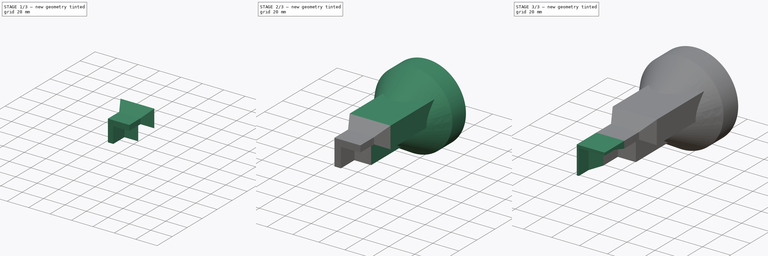
[diagram: build sequence overview — one tinted view per stage of 3, left to right]
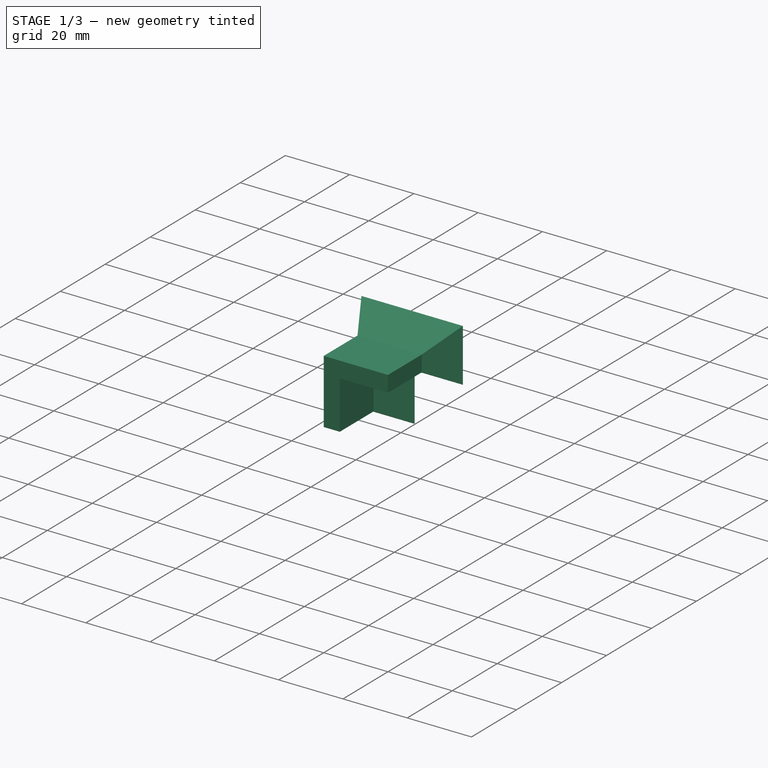
[diagram: stage 1 of 3 — iso view after this stage's code; geometry added in this stage tinted green]
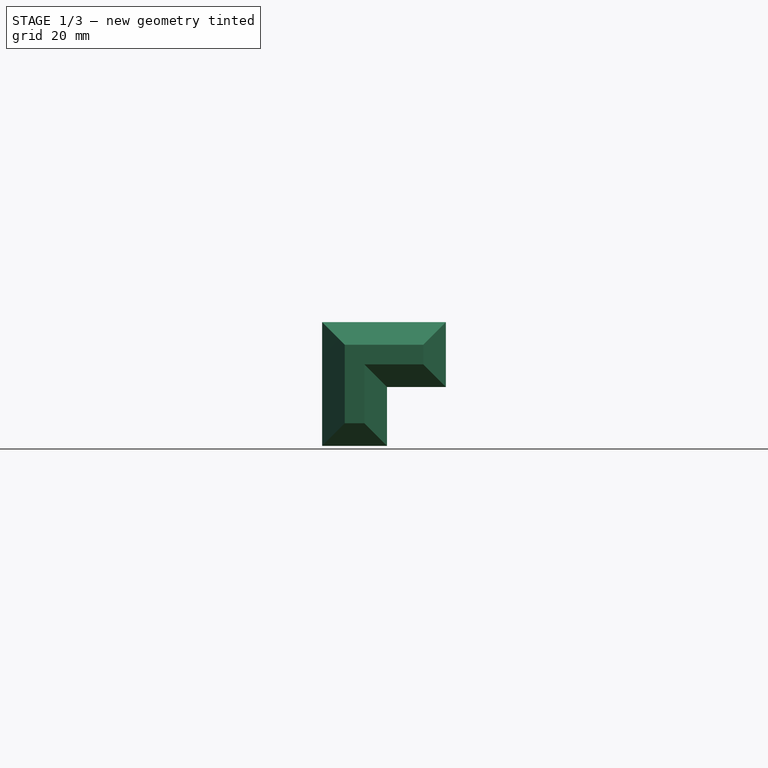
[diagram: stage 1 of 3 — front view after this stage's code; geometry added in this stage tinted green]
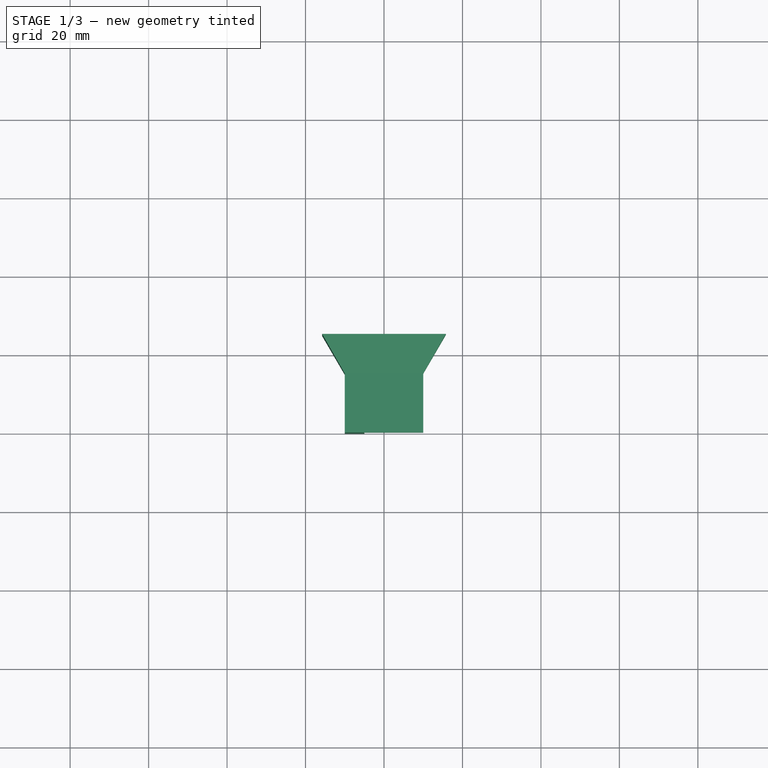
[diagram: stage 1 of 3 — top view after this stage's code; geometry added in this stage tinted green]
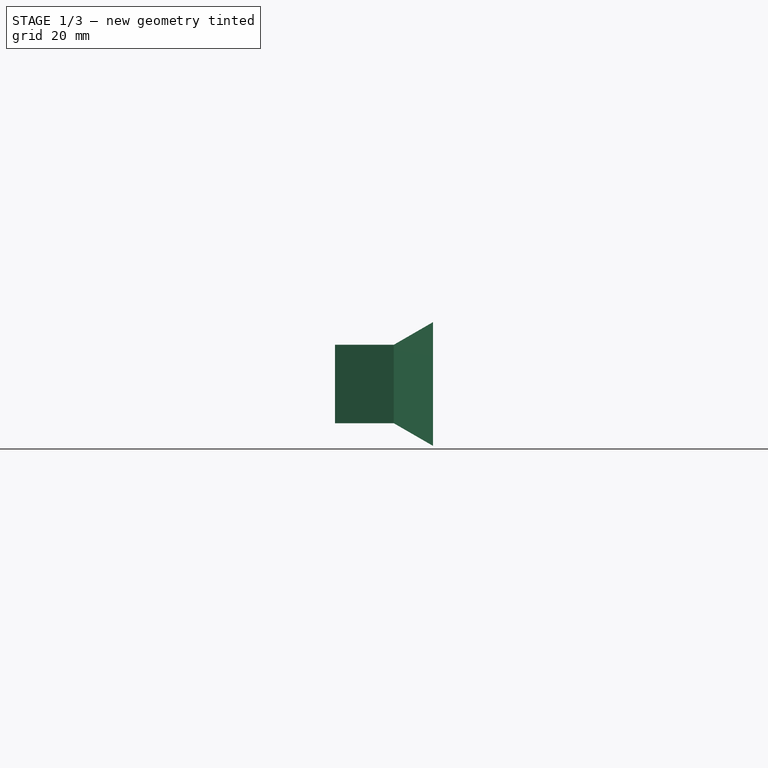
[diagram: stage 1 of 3 — right view after this stage's code; geometry added in this stage tinted green]
FCSTD DOCUMENT  (FreeCAD 0.21R33771 (Git))
Label: TProfileST3
License: All rights reserved
LicenseURL: http://en.wikipedia.org/wiki/All_rights_reserved
objects: Sketcher::SketchObject×5, PartDesign::Pad×5, PartDesign::SubShapeBinder×5, PartDesign::AdditiveCone×1, PartDesign::Plane×1, PartDesign::AdditiveLoft×1, PartDesign::Body×1
note: 26 computed .brp shape members not serialized (recipe doc carries the construction recipe); baked Part::Feature solids carry a one-line shape summary decoded from their .brp

FEATURE [Sketcher::SketchObject] Sketch
  FullyConstrained = true
  MapMode = 5
  Placement = pos=(0,0,0) rot=(1,0,0;1.5708rad)
  Support = -> [XZ_Plane]
  sketch-geometry (6):
    g0: LineSegment StartX=-10 StartY=10 StartZ=0 EndX=10 EndY=10 EndZ=0
    g1: LineSegment StartX=10 StartY=10 StartZ=0 EndX=10 EndY=5 EndZ=0
    g2: LineSegment StartX=10 StartY=5 StartZ=0 EndX=-5 EndY=5 EndZ=0
    g3: LineSegment StartX=-5 StartY=5 StartZ=0 EndX=-5 EndY=-10 EndZ=0
    g4: LineSegment StartX=-5 StartY=-10 StartZ=0 EndX=-10 EndY=-10 EndZ=0
    g5: LineSegment StartX=-10 StartY=-10 StartZ=0 EndX=-10 EndY=10 EndZ=0
  constraints (18):
    c: Horizontal(g0)
    c: Coincident(g0,g1)
    c: Vertical(g1)
    c: Coincident(g1,g2)
    c: Horizontal(g2)
    c: Coincident(g2,g3)
    c: Vertical(g3)
    c: Coincident(g3,g4)
    c: Horizontal(g4)
    c: Coincident(g4,g5)
    c: Coincident(g5,g0)
    c: Vertical(g5)
    c: DistanceY(g1,g1) = 5  'param3'
    c: DistanceX(g4,g4) = 5  'param4'
    c: DistanceX(g0,g0) = 20
    c: DistanceY(g5,g5) = 20
    c: DistanceX(g4,g-1) = 10
    c: DistanceY(g-1,g0) = 10
FEATURE [PartDesign::Pad] Pad
  Direction = (0,-1,-2e-16)
  Length = 15
  Length2 = 10
  Placement = pos=(0,0,0) rot=(1,0,0;1.5708rad)
  Profile = -> Sketch
  ReferenceAxis = -> Sketch [N_Axis]
  Reversed = true
  Type = 0
FEATURE [PartDesign::Pad] Pad001
  BaseFeature = -> Pad
  Direction = (0,1,2e-16)
  Length = 10
  Length2 = 10
  Placement = pos=(0,0,0) rot=(1,0,0;1.5708rad)
  Profile = -> Pad [Face8]
  TaperAngle = 30
  Type = 0
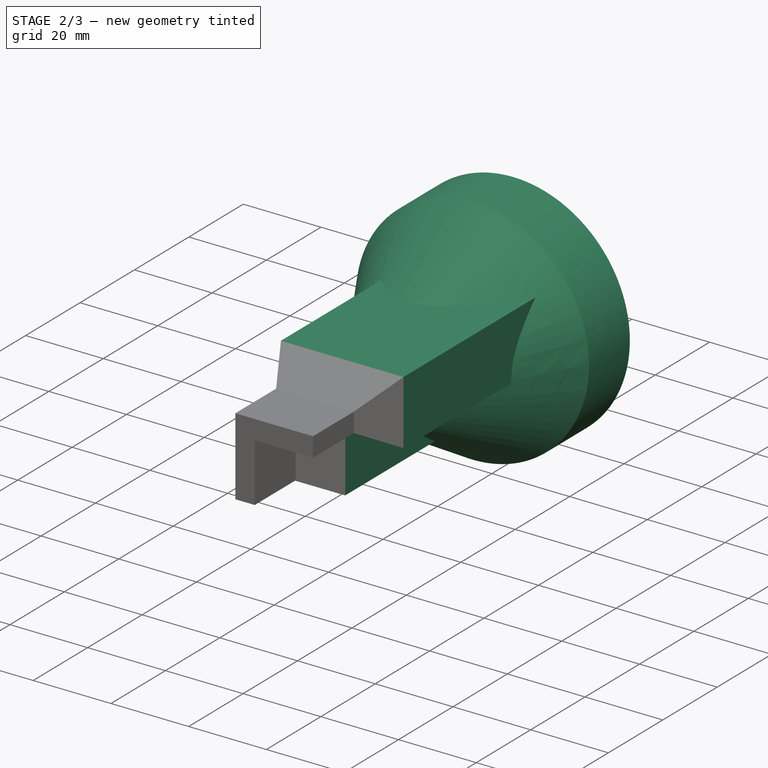
[diagram: stage 2 of 3 — iso view after this stage's code; geometry added in this stage tinted green]
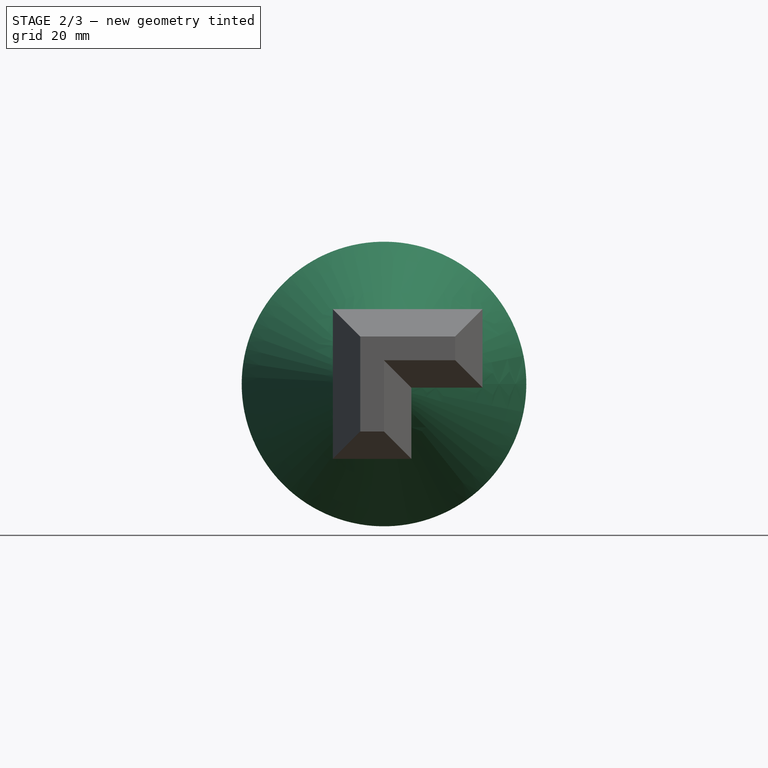
[diagram: stage 2 of 3 — front view after this stage's code; geometry added in this stage tinted green]
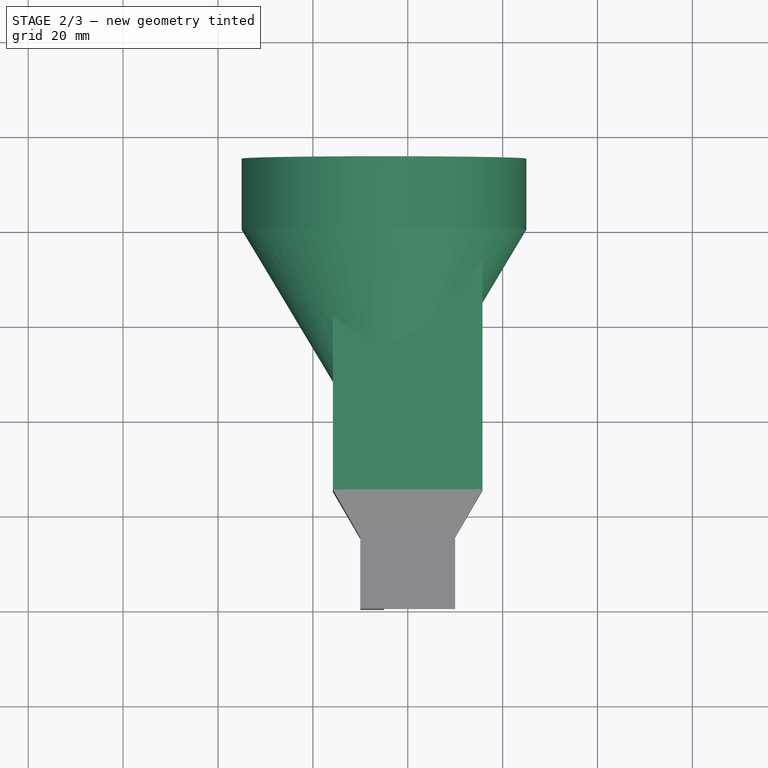
[diagram: stage 2 of 3 — top view after this stage's code; geometry added in this stage tinted green]
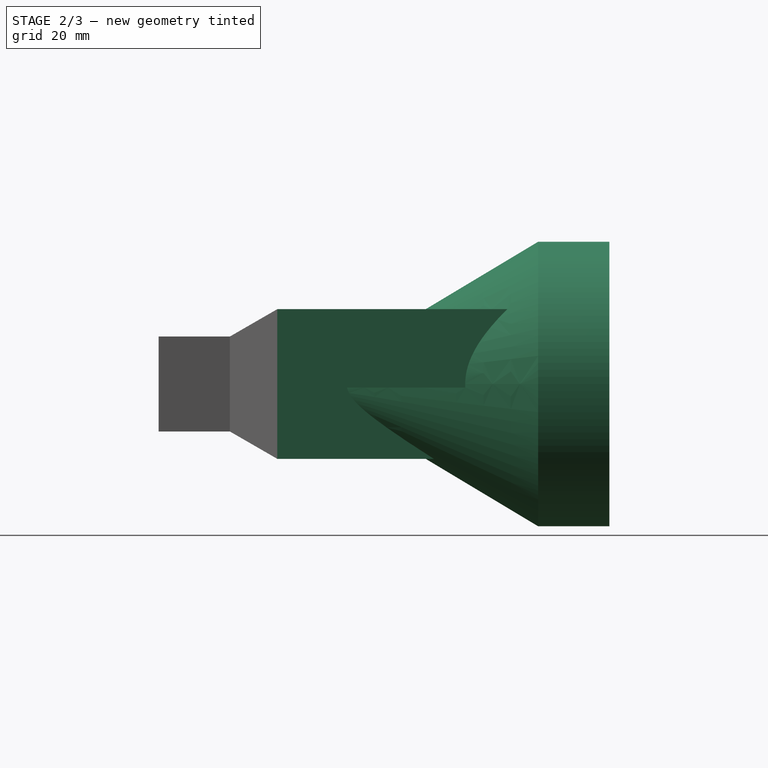
[diagram: stage 2 of 3 — right view after this stage's code; geometry added in this stage tinted green]
FEATURE [PartDesign::Pad] Pad002
  BaseFeature = -> Pad001
  Direction = (0,1,2e-16)
  Length = 50
  Length2 = 10
  Placement = pos=(0,0,0) rot=(1,0,0;1.5708rad)
  Profile = -> Pad001 [Face11]
  Type = 0
FEATURE [PartDesign::AdditiveCone] Cone
  Angle = 360
  AttacherType = Attacher::AttachEngine3D
  AttachmentOffset = pos=(-5,0,-45) rot=(0,0,1;0rad)
  BaseFeature = -> Pad002
  Height = 50
  MapMode = 5
  Placement = pos=(-5,30,6.7e-15) rot=(-1,0,0;1.5708rad)
  Radius1 = 0
  Radius2 = 30
  Support = -> [Pad002]
FEATURE [PartDesign::Pad] Pad003
  BaseFeature = -> Cone
  Direction = (0,1,2e-16)
  Length = 15
  Length2 = 10
  Placement = pos=(-5,30,6.7e-15) rot=(-1,0,0;1.5708rad)
  Profile = -> Cone [Face21]
  Type = 0
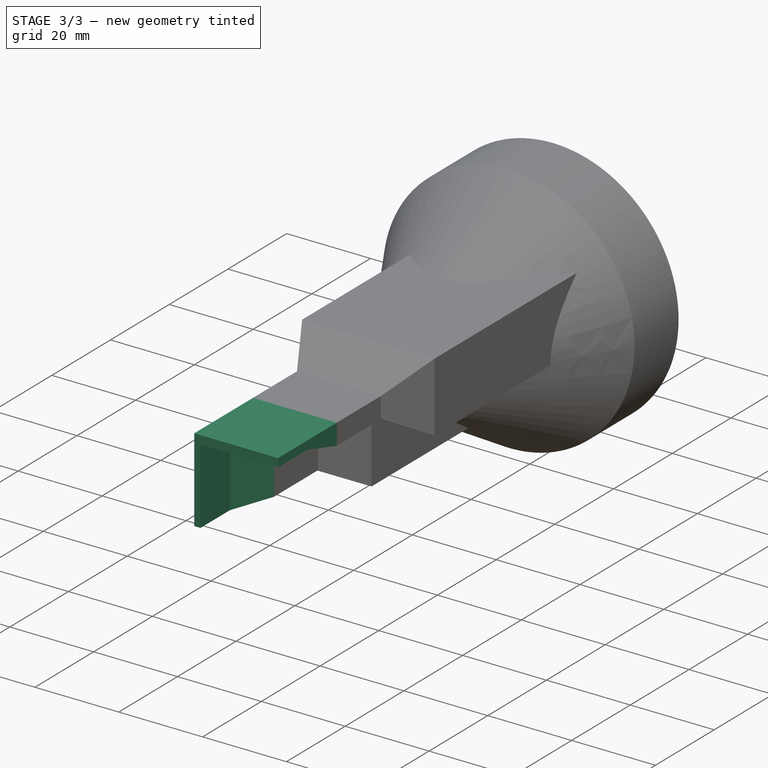
[diagram: stage 3 of 3 — iso view after this stage's code; geometry added in this stage tinted green]
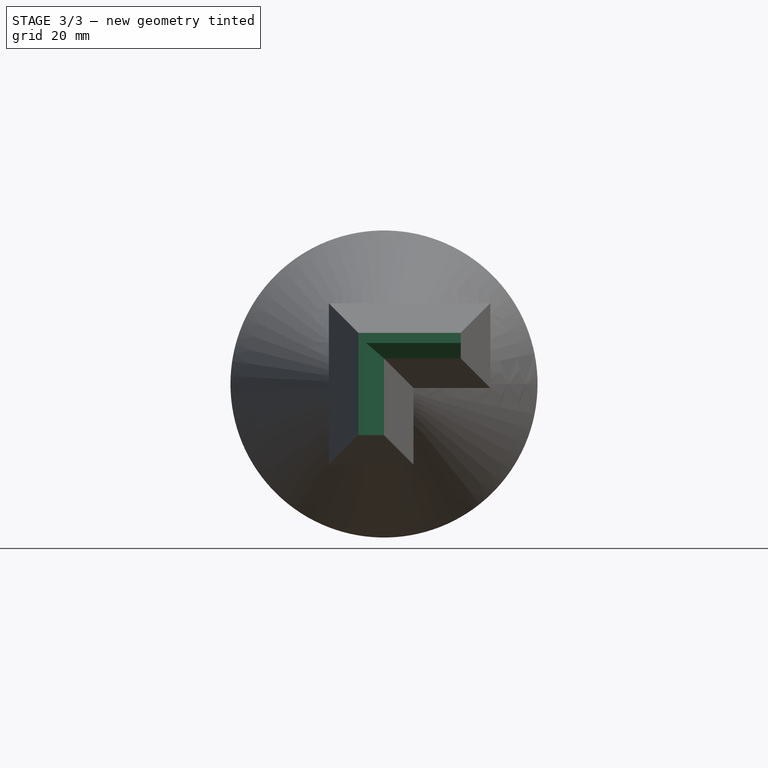
[diagram: stage 3 of 3 — front view after this stage's code; geometry added in this stage tinted green]
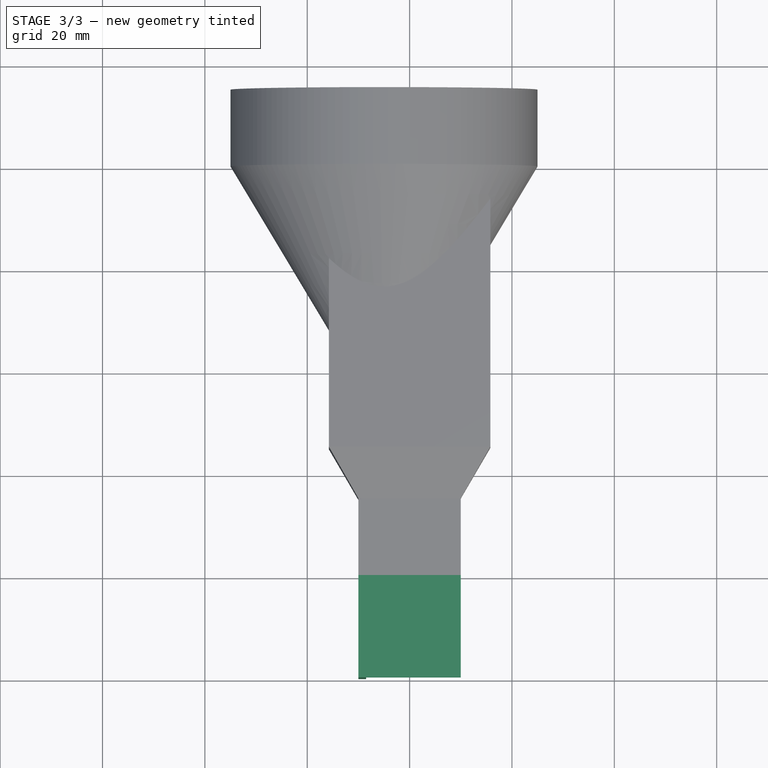
[diagram: stage 3 of 3 — top view after this stage's code; geometry added in this stage tinted green]
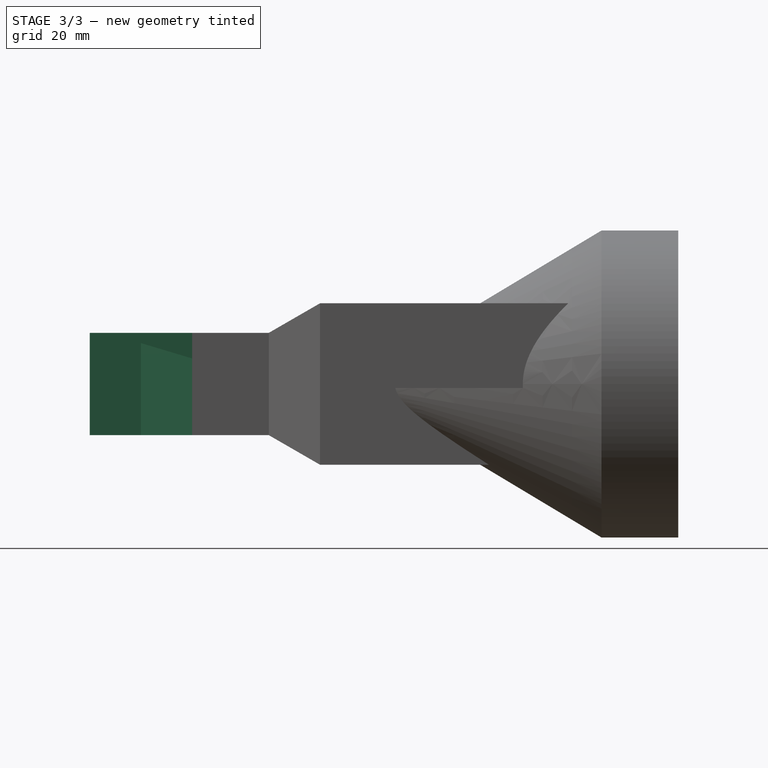
[diagram: stage 3 of 3 — right view after this stage's code; geometry added in this stage tinted green]
FEATURE [PartDesign::Plane] DatumPlane
  AttachmentOffset = pos=(0,0,10) rot=(0,0,1;0rad)
  Length = 60
  MapMode = 5
  Placement = pos=(-5,-10,-1.11e-14) rot=(1,0,0;1.5708rad)
  ResizeMode = 0
  Support = -> [Pad003]
  Width = 60
FEATURE [Sketcher::SketchObject] Sketch001
  FullyConstrained = true
  MapMode = 5
  Placement = pos=(-5,-10,-1.11e-14) rot=(1,0,0;1.5708rad)
  Support = -> [DatumPlane]
  sketch-geometry (6):
    g0: LineSegment StartX=-5 StartY=-10 StartZ=0 EndX=-5 EndY=10 EndZ=0
    g1: LineSegment StartX=-5 StartY=10 StartZ=0 EndX=15 EndY=10 EndZ=0
    g2: LineSegment StartX=15 StartY=10 StartZ=0 EndX=15 EndY=8 EndZ=0
    g3: LineSegment StartX=15 StartY=8 StartZ=0 EndX=-3.5 EndY=8 EndZ=0
    g4: LineSegment StartX=-3.5 StartY=8 StartZ=0 EndX=-3.5 EndY=-10 EndZ=0
    g5: LineSegment StartX=-3.5 StartY=-10 StartZ=0 EndX=-5 EndY=-10 EndZ=0
  constraints (18):
    c: Vertical(g0)
    c: Coincident(g0,g1)
    c: Horizontal(g1)
    c: Coincident(g1,g2)
    c: Vertical(g2)
    c: Coincident(g2,g3)
    c: Horizontal(g3)
    c: Coincident(g3,g4)
    c: Vertical(g4)
    c: Coincident(g4,g5)
    c: Coincident(g5,g0)
    c: Horizontal(g5)
    c: DistanceY(g2,g2) = 2  'param1'
    c: DistanceY(g0,g0) = 20
    c: DistanceY(g-1,g0) = 10
    c: DistanceX(g1,g1) = 20
    c: DistanceX(g5,g5) = 1.5  'param2'
    c: DistanceX(g0,g-1) = 5
FEATURE [PartDesign::AdditiveLoft] AdditiveLoft
  BaseFeature = -> Pad003
  Closed = false
  Placement = pos=(-5,30,6.7e-15) rot=(-1,0,0;1.5708rad)
  Profile = -> Pad003 [Face4]
  Ruled = true
  Sections = -> [Sketch001]
FEATURE [PartDesign::Pad] Pad004
  BaseFeature = -> AdditiveLoft
  Direction = (0,-1,-2e-16)
  Length = 10
  Length2 = 10
  Placement = pos=(-5,30,6.7e-15) rot=(-1,0,0;1.5708rad)
  Profile = -> AdditiveLoft [Face12]
  Type = 0
FEATURE [Sketcher::SketchObject] Sketch002
  FullyConstrained = true
  MapMode = 5
  Placement = pos=(-5,-20,-1e-14) rot=(1,0,0;1.5708rad)
  Support = -> [Pad004]
  expr: Constraints[10] = Sketch001.Constraints.param2
  expr: Constraints[9] = Sketch001.Constraints.param1
  sketch-geometry (4):
    g0: LineSegment StartX=-5 StartY=10 StartZ=0 EndX=-3.5 EndY=10 EndZ=0
    g1: LineSegment StartX=-3.5 StartY=10 StartZ=0 EndX=-3.5 EndY=8 EndZ=0
    g2: LineSegment StartX=-3.5 StartY=8 StartZ=0 EndX=-5 EndY=8 EndZ=0
    g3: LineSegment StartX=-5 StartY=8 StartZ=0 EndX=-5 EndY=10 EndZ=0
  constraints (12):
    c: Coincident(g0,g1)
    c: Coincident(g1,g2)
    c: Coincident(g2,g3)
    c: Coincident(g3,g0)
    c: Horizontal(g0)
    c: Horizontal(g2)
    c: Vertical(g1)
    c: Vertical(g3)
    c: DistanceY(g-1,g0) = 10
    c: DistanceY(g3,g3) = 2
    c: DistanceX(g2,g2) = 1.5
    c: DistanceX(g0,g-1) = 5
FEATURE [Sketcher::SketchObject] Sketch003
  FullyConstrained = true
  MapMode = 5
  Placement = pos=(-5,-20,-1e-14) rot=(1,0,0;1.5708rad)
  Support = -> [Pad004]
  expr: Constraints[10] = Sketch001.Constraints.param1
  sketch-geometry (4):
    g0: LineSegment StartX=-3.5 StartY=10 StartZ=0 EndX=15 EndY=10 EndZ=0
    g1: LineSegment StartX=15 StartY=10 StartZ=0 EndX=15 EndY=8 EndZ=0
    g2: LineSegment StartX=15 StartY=8 StartZ=0 EndX=-3.5 EndY=8 EndZ=0
    g3: LineSegment StartX=-3.5 StartY=8 StartZ=0 EndX=-3.5 EndY=10 EndZ=0
  constraints (12):
    c: Coincident(g0,g1)
    c: Coincident(g1,g2)
    c: Coincident(g2,g3)
    c: Coincident(g3,g0)
    c: Horizontal(g0)
    c: Horizontal(g2)
    c: Vertical(g1)
    c: Vertical(g3)
    c: DistanceX(g-1,g0) = 15
    c: DistanceX(g0,g0) = 18.5
    c: DistanceY(g1,g1) = 2
    c: DistanceY(g-1,g0) = 10
FEATURE [Sketcher::SketchObject] Sketch004
  FullyConstrained = true
  MapMode = 5
  Placement = pos=(-5,-20,-1e-14) rot=(1,0,0;1.5708rad)
  Support = -> [Pad004]
  expr: Constraints[8] = Sketch001.Constraints.param2
  sketch-geometry (4):
    g0: LineSegment StartX=-5 StartY=-10 StartZ=0 EndX=-3.5 EndY=-10 EndZ=0
    g1: LineSegment StartX=-3.5 StartY=-10 StartZ=0 EndX=-3.5 EndY=8 EndZ=0
    g2: LineSegment StartX=-3.5 StartY=8 StartZ=0 EndX=-5 EndY=8 EndZ=0
    g3: LineSegment StartX=-5 StartY=8 StartZ=0 EndX=-5 EndY=-10 EndZ=0
  constraints (12):
    c: Coincident(g0,g1)
    c: Coincident(g1,g2)
    c: Coincident(g2,g3)
    c: Coincident(g3,g0)
    c: Horizontal(g0)
    c: Horizontal(g2)
    c: Vertical(g1)
    c: Vertical(g3)
    c: DistanceX(g0,g0) = 1.5
    c: DistanceX(g0,g-1) = 5
    c: DistanceY(g3,g3) = 18
    c: DistanceY(g0,g-1) = 10
FEATURE [PartDesign::SubShapeBinder] Binder  label="IS1_Body"
  BindCopyOnChange = 0
  BindMode = 0
  ClaimChildren = false
  Context = -> Body [Binder.]
  Fuse = false
  MakeFace = true
  OffsetFill = false
  OffsetIntersection = false
  OffsetJoinType = 0
  OffsetOpenResult = false
  PartialLoad = false
  Relative = true
  Support = -> [Sketch002]
  _Version = 2
FEATURE [PartDesign::SubShapeBinder] Binder001  label="ES1_Body"
  BindCopyOnChange = 0
  BindMode = 0
  ClaimChildren = false
  Context = -> Body [Binder001.]
  Fuse = false
  MakeFace = true
  OffsetFill = false
  OffsetIntersection = false
  OffsetJoinType = 0
  OffsetOpenResult = false
  PartialLoad = false
  Relative = true
  Support = -> [Sketch003]
  _Version = 2
FEATURE [PartDesign::SubShapeBinder] Binder002  label="ES2_Body"
  BindCopyOnChange = 0
  BindMode = 0
  ClaimChildren = false
  Context = -> Body [Binder002.]
  Fuse = false
  MakeFace = true
  OffsetFill = false
  OffsetIntersection = false
  OffsetJoinType = 0
  OffsetOpenResult = false
  PartialLoad = false
  Relative = true
  Support = -> [Sketch004]
  _Version = 2
FEATURE [PartDesign::SubShapeBinder] Binder003  label="inlet_Body"
  BindCopyOnChange = 0
  BindMode = 0
  ClaimChildren = false
  Context = -> Body [Binder003.]
  Fuse = false
  MakeFace = true
  OffsetFill = false
  OffsetIntersection = false
  OffsetJoinType = 0
  OffsetOpenResult = false
  PartialLoad = false
  Relative = true
  Support = -> [Pad004[Face34]]
  _Version = 2
FEATURE [PartDesign::SubShapeBinder] Binder004  label="walls_Body"
  BindCopyOnChange = 0
  BindMode = 0
  ClaimChildren = false
  Context = -> Body [Binder004.]
  Fuse = false
  MakeFace = true
  OffsetFill = false
  OffsetIntersection = false
  OffsetJoinType = 0
  OffsetOpenResult = false
  PartialLoad = false
  Relative = true
  Support = -> [Pad004[Face18,Face24,Face13,Face33,Face8,Face5,Face2,Face1]]
  _Version = 2
FEATURE [PartDesign::Body] Body
  Group = -> [Sketch,Pad,Pad001,Pad002,Cone,Pad003,DatumPlane,Sketch001,AdditiveLoft,Pad004,Sketch002,Sketch003,Sketch004,Binder,Binder001,Binder002,Binder003,Binder004]
  Origin = -> Origin
  Tip = -> Pad004
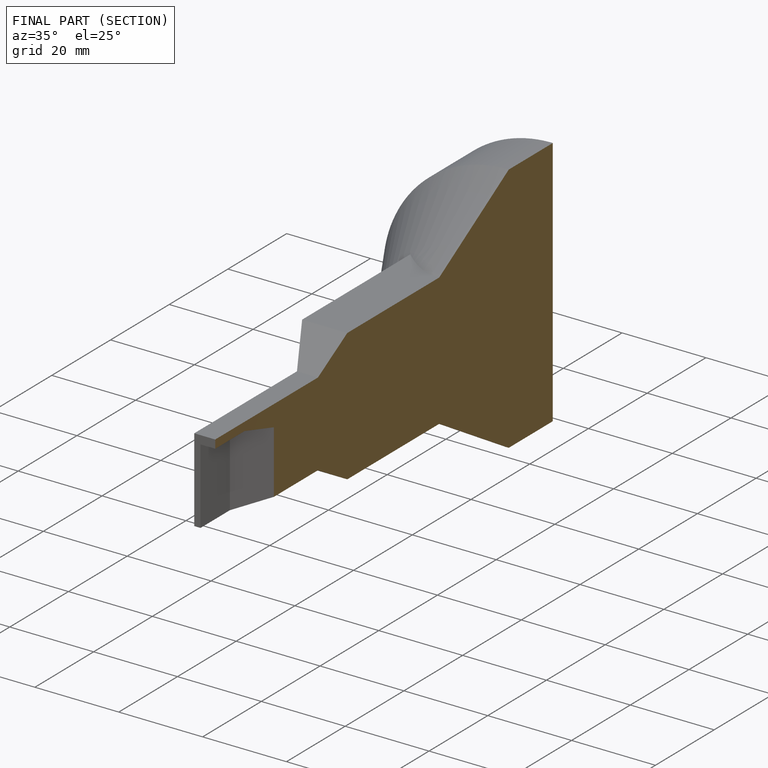
[diagram: finished part — half-section view (interior)]
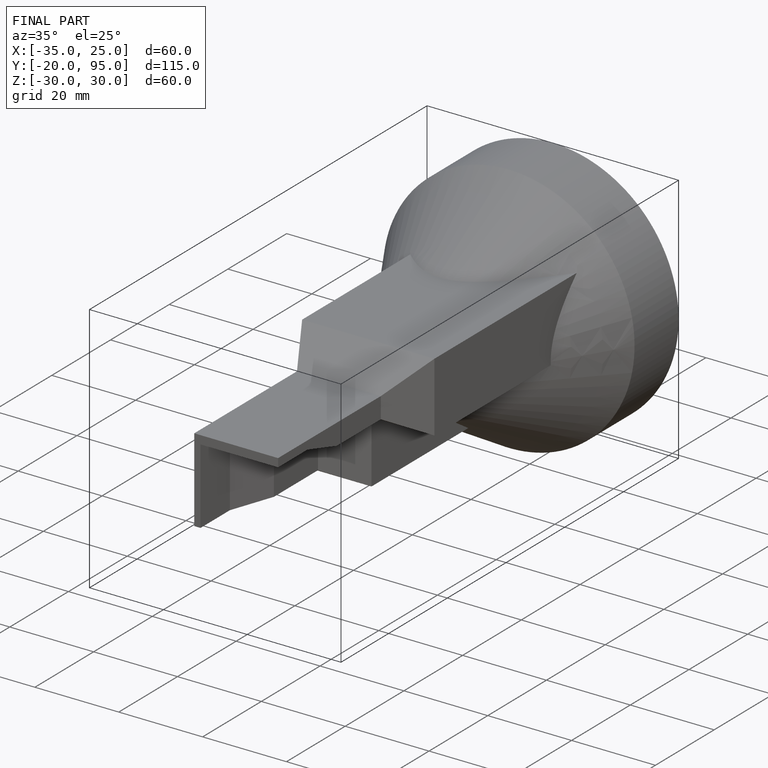
[diagram: finished part — iso view with bounding-box wireframe]
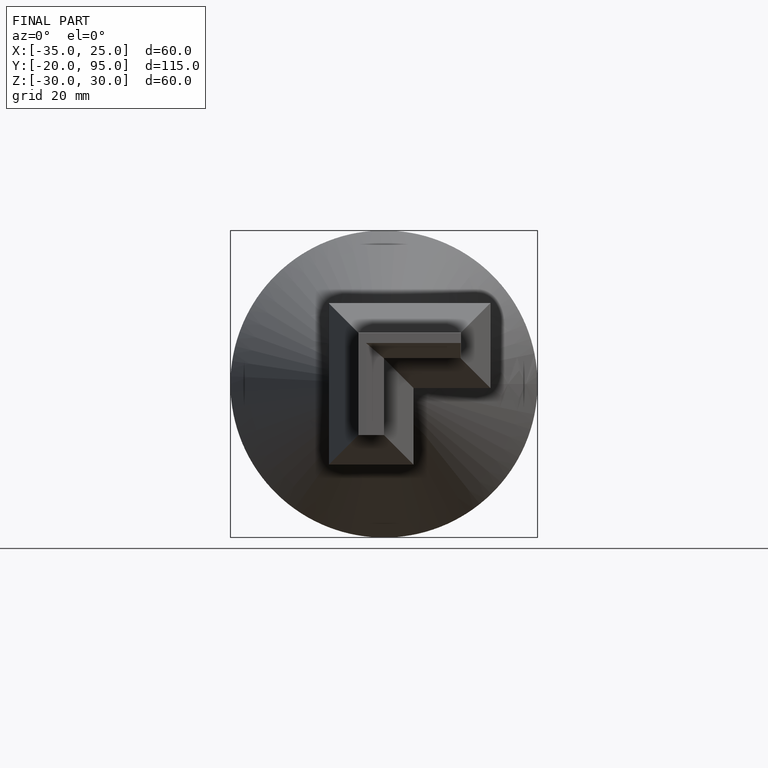
[diagram: finished part — front view with bounding-box wireframe]
